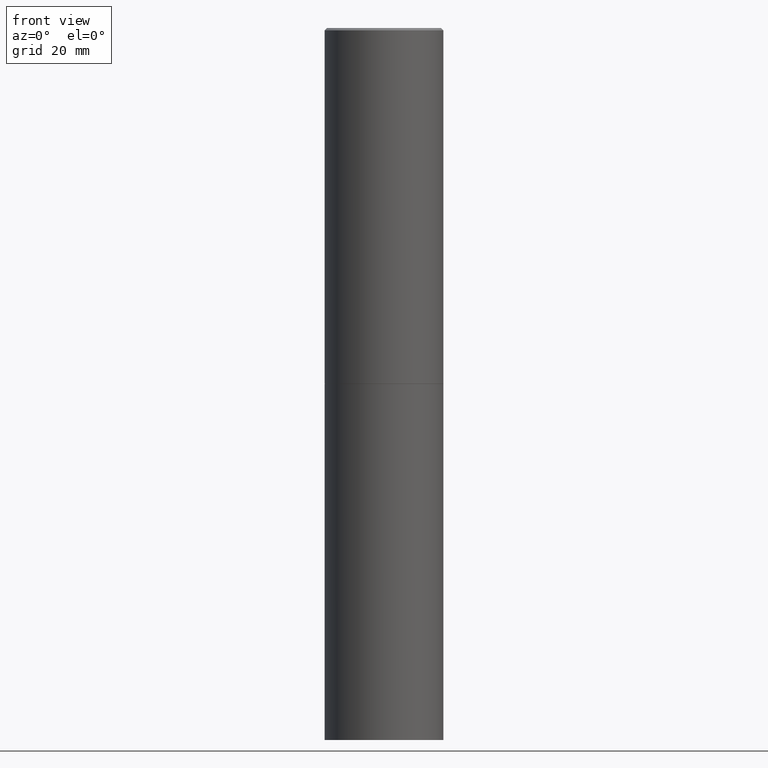
[diagram: clean part render]
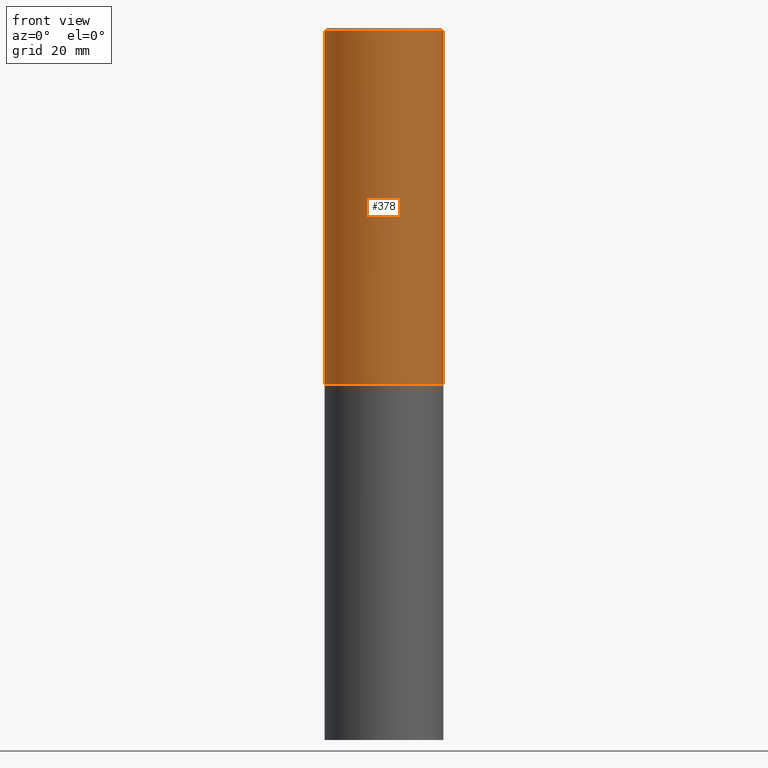
[diagram: same view with one face highlighted and labeled with its STEP entity id]
A machine part, front view. The second image highlights one B-rep face of the part: STEP entity #378.
In plain terms, the highlighted cylindrical surface (partial cylindrical patch) has radius 12.7 mm, axis along (-0, 0, 1).
Its self-contained STEP definition (entity closure, byte-faithful):
#4 = EDGE_LOOP ( 'NONE', ( #335, #294, #114, #180 ) ) ;
#22 = EDGE_CURVE ( 'NONE', #360, #145, #254, .T. ) ;
#31 = DIRECTION ( 'NONE',  ( 1.000000000000000000, -6.982962677686266711E-15, 0.000000000000000000 ) ) ;
#51 = CARTESIAN_POINT ( 'NONE',  ( 0.4999999999999998335, -3.491481338843132566E-15, 2.438088387897967336E-29 ) ) ;
#60 = CYLINDRICAL_SURFACE ( 'NONE', #290, 0.4999999999999998335 ) ;
#61 = CARTESIAN_POINT ( 'NONE',  ( 4.890937612370299433E-31, -6.982962677686328587E-17, -0.02000000000000010797 ) ) ;
#86 = DIRECTION ( 'NONE',  ( -2.445468806185136597E-29, 3.491481338843145583E-15, 1.000000000000000000 ) ) ;
#102 = CARTESIAN_POINT ( 'NONE',  ( -0.4999999999999996669, 3.421651712066267691E-15, -0.02000000000000010797 ) ) ;
#114 = ORIENTED_EDGE ( 'NONE', *, *, #159, .T. ) ;
#124 = CARTESIAN_POINT ( 'NONE',  ( 0.5000000000000000000, -1.396243387403372828E-14, -2.999000000000000554 ) ) ;
#135 = AXIS2_PLACEMENT_3D ( 'NONE', #232, #379, #169 ) ;
#143 = CIRCLE ( 'NONE', #135, 0.5000000000000000000 ) ;
#145 = VERTEX_POINT ( 'NONE', #102 ) ;
#146 = VERTEX_POINT ( 'NONE', #124 ) ;
#149 = AXIS2_PLACEMENT_3D ( 'NONE', #61, #86, #31 ) ;
#159 = EDGE_CURVE ( 'NONE', #146, #369, #314, .T. ) ;
#161 = DIRECTION ( 'NONE',  ( -2.445468806185136877E-29, 3.491481338843145188E-15, 1.000000000000000000 ) ) ;
#169 = DIRECTION ( 'NONE',  ( 1.000000000000000000, -6.982962677686266711E-15, 0.000000000000000000 ) ) ;
#173 = CARTESIAN_POINT ( 'NONE',  ( 0.000000000000000000, 0.000000000000000000, 0.000000000000000000 ) ) ;
#180 = ORIENTED_EDGE ( 'NONE', *, *, #313, .F. ) ;
#191 = CARTESIAN_POINT ( 'NONE',  ( -0.4999999999999998335, 3.552713678800499746E-15, -2.459467545127452330E-29 ) ) ;
#202 = CARTESIAN_POINT ( 'NONE',  ( 0.4999999999999996669, -3.500078625662626713E-15, -0.02000000000000010797 ) ) ;
#203 = DIRECTION ( 'NONE',  ( -2.445468806185136597E-29, 3.491481338843145583E-15, 1.000000000000000000 ) ) ;
#214 = VECTOR ( 'NONE', #161, 39.37007874015748143 ) ;
#227 = EDGE_CURVE ( 'NONE', #360, #146, #143, .T. ) ;
#230 = CARTESIAN_POINT ( 'NONE',  ( -0.5000000000000000000, -1.717677402183226998E-15, -2.999000000000000554 ) ) ;
#232 = CARTESIAN_POINT ( 'NONE',  ( 7.333960949749226429E-29, -1.047095253519059492E-14, -2.999000000000000554 ) ) ;
#239 = DIRECTION ( 'NONE',  ( 1.000000000000000000, -6.982962677686267499E-15, 4.876176775795936353E-29 ) ) ;
#254 = LINE ( 'NONE', #191, #329 ) ;
#276 = CIRCLE ( 'NONE', #149, 0.4999999999999996669 ) ;
#279 = DIRECTION ( 'NONE',  ( -2.445468806185136877E-29, 3.491481338843145188E-15, 1.000000000000000000 ) ) ;
#290 = AXIS2_PLACEMENT_3D ( 'NONE', #173, #203, #239 ) ;
#294 = ORIENTED_EDGE ( 'NONE', *, *, #227, .T. ) ;
#313 = EDGE_CURVE ( 'NONE', #145, #369, #276, .T. ) ;
#314 = LINE ( 'NONE', #51, #214 ) ;
#325 = FACE_OUTER_BOUND ( 'NONE', #4, .T. ) ;
#329 = VECTOR ( 'NONE', #279, 39.37007874015748143 ) ;
#335 = ORIENTED_EDGE ( 'NONE', *, *, #22, .F. ) ;
#360 = VERTEX_POINT ( 'NONE', #230 ) ;
#369 = VERTEX_POINT ( 'NONE', #202 ) ;
#378 = ADVANCED_FACE ( 'NONE', ( #325 ), #60, .T. ) ;
#379 = DIRECTION ( 'NONE',  ( -2.445468806185136597E-29, 3.491481338843145583E-15, 1.000000000000000000 ) ) ;